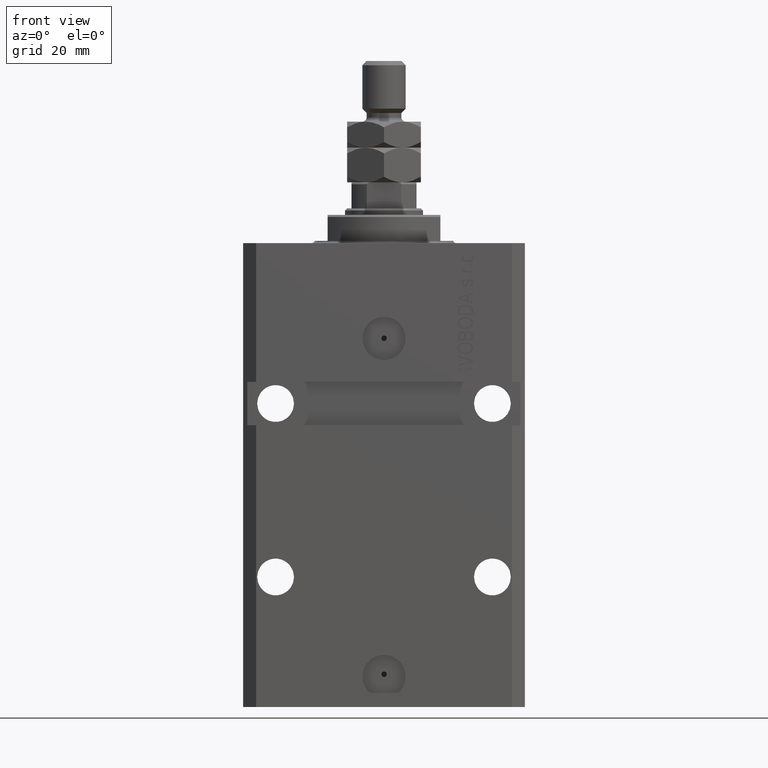
[diagram: clean part render]
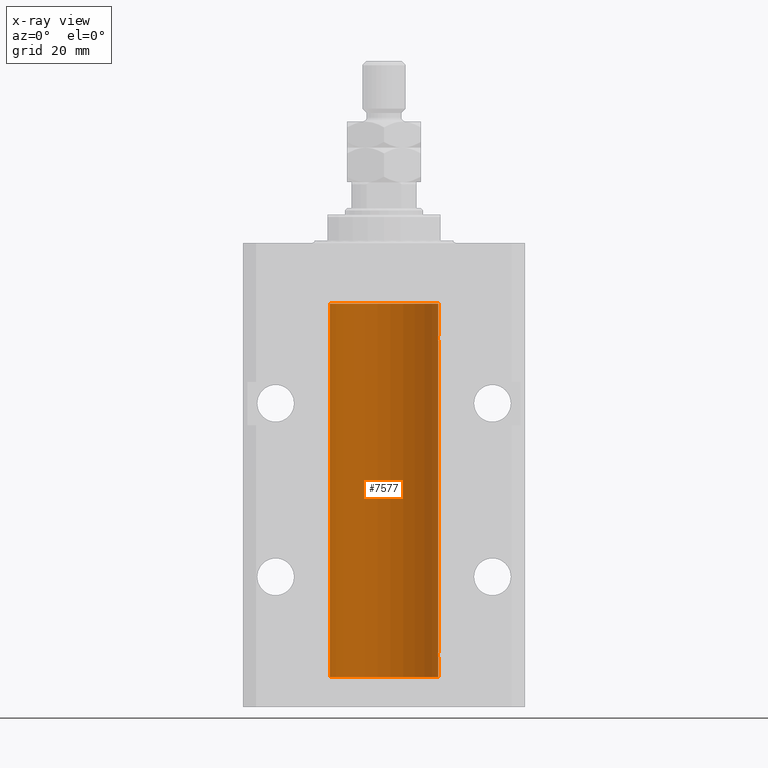
[diagram: x-ray — body ghosted, one internal face saturated and labeled with its STEP entity id]
A machine part, front view, then the same camera in x-ray: the body is ghosted and one INTERNAL B-rep face — a face not visible from any outside direction — is saturated and labeled: STEP entity #7577.
In plain terms, the highlighted cylindrical surface (partial cylindrical patch) has radius 12.5 mm, axis along (0, 0, 1).
Its self-contained STEP definition (entity closure, byte-faithful):
#271 = VERTEX_POINT ( 'NONE', #3368 ) ;
#592 = CARTESIAN_POINT ( 'NONE',  ( -12.48436813453758454, 0.6249418250771192618, -21.83668996798922635 ) ) ;
#647 = DIRECTION ( 'NONE',  ( -0.000000000000000000, -0.000000000000000000, 1.000000000000000000 ) ) ;
#1514 = CARTESIAN_POINT ( 'NONE',  ( 12.50000000000017941, 3.868073689162038701E-13, -94.37499999999640465 ) ) ;
#1816 = CARTESIAN_POINT ( 'NONE',  ( 12.50000000000000000, -1.470318446642941360E-15, -22.62500000000000000 ) ) ;
#1975 = DIRECTION ( 'NONE',  ( -0.000000000000000000, -0.000000000000000000, 1.000000000000000000 ) ) ;
#2133 = CARTESIAN_POINT ( 'NONE',  ( -12.48810268015257741, 0.5573155909661239304, -94.67347410093871929 ) ) ;
#2294 = CARTESIAN_POINT ( 'NONE',  ( 12.48810305280568222, 0.5461368461738485003, -94.68525466142676805 ) ) ;
#2371 = CARTESIAN_POINT ( 'NONE',  ( -12.49011732893843529, 0.5003763274120199833, -95.38348111289285214 ) ) ;
#2544 = DIRECTION ( 'NONE',  ( -0.000000000000000000, -0.000000000000000000, 1.000000000000000000 ) ) ;
#2610 = VERTEX_POINT ( 'NONE', #20080 ) ;
#2674 = VERTEX_POINT ( 'NONE', #16293 ) ;
#2788 = EDGE_LOOP ( 'NONE', ( #4615, #10529, #3699, #41931, #38320, #23142, #27535, #14792, #37107, #33343, #11453, #3773, #32498, #27604 ) ) ;
#3058 = CARTESIAN_POINT ( 'NONE',  ( 0.000000000000000000, 0.000000000000000000, -100.0999999999999943 ) ) ;
#3290 = DIRECTION ( 'NONE',  ( 0.000000000000000000, 0.000000000000000000, 1.000000000000000000 ) ) ;
#3368 = CARTESIAN_POINT ( 'NONE',  ( 12.50000000000000000, -1.836039810331332019E-15, -95.62500000000000000 ) ) ;
#3482 = CARTESIAN_POINT ( 'NONE',  ( -12.49422197749724006, 0.3843754434364375916, -21.50047099568095277 ) ) ;
#3699 = ORIENTED_EDGE ( 'NONE', *, *, #43548, .T. ) ;
#3773 = ORIENTED_EDGE ( 'NONE', *, *, #10243, .T. ) ;
#4167 = CARTESIAN_POINT ( 'NONE',  ( -12.49011732893843529, 0.5003763274120274218, -22.38348111289287701 ) ) ;
#4537 = EDGE_CURVE ( 'NONE', #19787, #41481, #35376, .T. ) ;
#4615 = ORIENTED_EDGE ( 'NONE', *, *, #4537, .F. ) ;
#4632 = VECTOR ( 'NONE', #647, 1000.000000000000000 ) ;
#5467 = CARTESIAN_POINT ( 'NONE',  ( -12.49915784441387068, 0.1636601911727894876, -94.39126818989429069 ) ) ;
#5607 = CARTESIAN_POINT ( 'NONE',  ( 12.49999999999999822, 0.08262306818362555316, -22.62499999999997513 ) ) ;
#5837 = CARTESIAN_POINT ( 'NONE',  ( 12.50000000000000000, -1.470318446642941360E-15, -22.62500000000000000 ) ) ;
#5923 = EDGE_CURVE ( 'NONE', #8409, #32985, #29791, .T. ) ;
#5932 = CARTESIAN_POINT ( 'NONE',  ( -12.49631005746706514, 0.3253680783018457756, -95.55856740465388555 ) ) ;
#6081 = LINE ( 'NONE', #6780, #23449 ) ;
#6087 = EDGE_CURVE ( 'NONE', #26111, #21292, #6081, .T. ) ;
#6369 = DIRECTION ( 'NONE',  ( 1.000000000000000000, 0.000000000000000000, 0.000000000000000000 ) ) ;
#6497 = CARTESIAN_POINT ( 'NONE',  ( -12.50000000000017941, 3.883381774819353300E-13, -95.62500000000359535 ) ) ;
#6678 = CARTESIAN_POINT ( 'NONE',  ( 12.49625698805481022, 0.3151108292486944906, -95.54593695688171806 ) ) ;
#6725 = CARTESIAN_POINT ( 'NONE',  ( 0.000000000000000000, 0.000000000000000000, -13.99999999999999822 ) ) ;
#6733 = AXIS2_PLACEMENT_3D ( 'NONE', #6725, #14812, #7668 ) ;
#6780 = CARTESIAN_POINT ( 'NONE',  ( 12.50000000000000000, 0.000000000000000000, -100.0999999999999943 ) ) ;
#6818 = B_SPLINE_CURVE_WITH_KNOTS ( 'NONE', 3,
 ( #24010, #35203, #5467, #28055, #34730, #2133, #9978, #31632, #30926, #45673, #2371, #5932, #9282, #16896 ),
 .UNSPECIFIED., .F., .F.,
 ( 4, 2, 2, 2, 2, 2, 4 ),
 ( 3.486178718436696769E-18, 0.0002442924852390829216, 0.0004885849704781623738, 0.0009771699409563507684, 0.001221462426195465403, 0.001465754911434580254, 0.001954339881912780900 ),
 .UNSPECIFIED. ) ;
#7497 = EDGE_CURVE ( 'NONE', #32985, #26111, #43937, .T. ) ;
#7577 = ADVANCED_FACE ( 'NONE', ( #40433 ), #25243, .F. ) ;
#7668 = DIRECTION ( 'NONE',  ( 1.000000000000000000, 0.000000000000000000, 0.000000000000000000 ) ) ;
#7709 = CARTESIAN_POINT ( 'NONE',  ( -12.50000000000017941, 3.883381646606358354E-13, -22.62500000000358824 ) ) ;
#7795 = CARTESIAN_POINT ( 'NONE',  ( -12.50000000000000000, 1.530808498934191521E-15, -100.0999999999999943 ) ) ;
#7852 = DIRECTION ( 'NONE',  ( 1.000000000000000000, 0.000000000000000000, 0.000000000000000000 ) ) ;
#8409 = VERTEX_POINT ( 'NONE', #1816 ) ;
#9282 = CARTESIAN_POINT ( 'NONE',  ( -12.49999999999999112, 0.1631761135151224562, -95.62499999999980105 ) ) ;
#9782 = CARTESIAN_POINT ( 'NONE',  ( 12.48520578595314845, 0.6087855079133684955, -21.83656717509346024 ) ) ;
#9978 = CARTESIAN_POINT ( 'NONE',  ( -12.48436813453758631, 0.6249418250771134886, -94.83668996798924411 ) ) ;
#10123 = DIRECTION ( 'NONE',  ( -0.000000000000000000, -0.000000000000000000, 1.000000000000000000 ) ) ;
#10243 = EDGE_CURVE ( 'NONE', #2610, #27803, #15278, .T. ) ;
#10529 = ORIENTED_EDGE ( 'NONE', *, *, #21313, .F. ) ;
#11038 = EDGE_CURVE ( 'NONE', #23044, #41481, #6818, .T. ) ;
#11304 = CARTESIAN_POINT ( 'NONE',  ( -12.48436376893640443, 0.6250290278979917513, -22.08132082824473486 ) ) ;
#11453 = ORIENTED_EDGE ( 'NONE', *, *, #15765, .F. ) ;
#11656 = AXIS2_PLACEMENT_3D ( 'NONE', #3058, #3290, #6369 ) ;
#12050 = CARTESIAN_POINT ( 'NONE',  ( 12.48436522214885969, 0.6250000000001448841, -22.16312747540307271 ) ) ;
#12927 = EDGE_CURVE ( 'NONE', #23044, #27803, #24554, .T. ) ;
#12948 = VECTOR ( 'NONE', #2544, 1000.000000000000000 ) ;
#13348 = CARTESIAN_POINT ( 'NONE',  ( 12.49631206032075958, 0.3252904079142808214, -21.44139700214925526 ) ) ;
#13583 = CARTESIAN_POINT ( 'NONE',  ( 12.49012055744648997, 0.5002956126655976332, -21.61641710202404454 ) ) ;
#14061 = CARTESIAN_POINT ( 'NONE',  ( 12.49421963472024721, 0.3844519291903572555, -95.49947303647047647 ) ) ;
#14211 = VERTEX_POINT ( 'NONE', #1514 ) ;
#14792 = ORIENTED_EDGE ( 'NONE', *, *, #7497, .T. ) ;
#14812 = DIRECTION ( 'NONE',  ( 0.000000000000000000, 0.000000000000000000, 1.000000000000000000 ) ) ;
#15119 = CARTESIAN_POINT ( 'NONE',  ( -12.48810268015257563, 0.5573155909661349217, -21.67347410093867666 ) ) ;
#15268 = CARTESIAN_POINT ( 'NONE',  ( -12.50000000000000000, 1.530808498934191521E-15, -100.0999999999999943 ) ) ;
#15278 = B_SPLINE_CURVE_WITH_KNOTS ( 'NONE', 3,
 ( #36999, #26288, #22711, #15359, #3482, #15119, #592, #11304, #21789, #18002, #4167, #36308, #29631, #40553 ),
 .UNSPECIFIED., .F., .F.,
 ( 4, 2, 2, 2, 2, 2, 4 ),
 ( 2.030551168097110502E-20, 0.0002442924852390969078, 0.0004885849704781938157, 0.0009771699409563880650, 0.001221462426195485135, 0.001465754911434582423, 0.001954339881912776130 ),
 .UNSPECIFIED. ) ;
#15359 = CARTESIAN_POINT ( 'NONE',  ( -12.49625855304193678, 0.3150454781038042329, -21.45402800297484802 ) ) ;
#15765 = EDGE_CURVE ( 'NONE', #2610, #22379, #33250, .T. ) ;
#16237 = CARTESIAN_POINT ( 'NONE',  ( 12.49999999999999822, 0.08262306818362624705, -95.62499999999998579 ) ) ;
#16293 = CARTESIAN_POINT ( 'NONE',  ( 12.50000000000000000, 0.000000000000000000, -100.0999999999999943 ) ) ;
#16540 = VECTOR ( 'NONE', #37268, 1000.000000000000000 ) ;
#16819 = CARTESIAN_POINT ( 'NONE',  ( 12.49999999999999822, 0.1631389616600901760, -94.37500000000024158 ) ) ;
#16896 = CARTESIAN_POINT ( 'NONE',  ( -12.50000000000017941, 3.883381774819353300E-13, -95.62500000000359535 ) ) ;
#16972 = CIRCLE ( 'NONE', #11656, 12.50000000000000000 ) ;
#17574 = CARTESIAN_POINT ( 'NONE',  ( 12.50000000000000000, 0.000000000000000000, -13.99999999999999822 ) ) ;
#17802 = EDGE_CURVE ( 'NONE', #271, #20166, #32998, .T. ) ;
#18002 = CARTESIAN_POINT ( 'NONE',  ( -12.48809959379011403, 0.5462151254764975317, -22.31461370481611795 ) ) ;
#18182 = CARTESIAN_POINT ( 'NONE',  ( -12.50000000000000000, -1.522152011595579853E-14, -94.37500000000000000 ) ) ;
#19186 = CARTESIAN_POINT ( 'NONE',  ( 12.50000000000000000, 0.000000000000000000, -100.0999999999999943 ) ) ;
#19425 = CARTESIAN_POINT ( 'NONE',  ( 12.49625698805480667, 0.3151108292486967666, -22.54593695688170385 ) ) ;
#19787 = VERTEX_POINT ( 'NONE', #15268 ) ;
#20080 = CARTESIAN_POINT ( 'NONE',  ( -12.50000000000000000, -2.089494013101375120E-17, -21.37499999999999645 ) ) ;
#20166 = VERTEX_POINT ( 'NONE', #43536 ) ;
#20728 = CARTESIAN_POINT ( 'NONE',  ( 12.48436522214885969, 0.6250000000001505462, -95.16312747540308692 ) ) ;
#20775 = CARTESIAN_POINT ( 'NONE',  ( 12.50000000000017941, 3.868073565084946818E-13, -21.37499999999641176 ) ) ;
#21292 = VERTEX_POINT ( 'NONE', #17574 ) ;
#21313 = EDGE_CURVE ( 'NONE', #2674, #19787, #16972, .T. ) ;
#21662 = CARTESIAN_POINT ( 'NONE',  ( 0.000000000000000000, 0.000000000000000000, -100.0999999999999943 ) ) ;
#21789 = CARTESIAN_POINT ( 'NONE',  ( -12.48520330846397819, 0.6088355886774127201, -22.16325431852561323 ) ) ;
#22379 = VERTEX_POINT ( 'NONE', #29744 ) ;
#22711 = CARTESIAN_POINT ( 'NONE',  ( -12.49915784441386890, 0.1636601911727947889, -21.39126818989430490 ) ) ;
#23044 = VERTEX_POINT ( 'NONE', #18182 ) ;
#23142 = ORIENTED_EDGE ( 'NONE', *, *, #34139, .T. ) ;
#23449 = VECTOR ( 'NONE', #10123, 1000.000000000000000 ) ;
#24010 = CARTESIAN_POINT ( 'NONE',  ( -12.50000000000000000, -1.522152011595579853E-14, -94.37500000000000000 ) ) ;
#24279 = CARTESIAN_POINT ( 'NONE',  ( 12.48436522214888100, 0.6249999999996762590, -21.91847339462350774 ) ) ;
#24518 = CARTESIAN_POINT ( 'NONE',  ( 12.48436522214846711, 0.6250000000078848039, -94.99999999999923261 ) ) ;
#24554 = LINE ( 'NONE', #42403, #31919 ) ;
#25031 = AXIS2_PLACEMENT_3D ( 'NONE', #21662, #25699, #7852 ) ;
#25243 = CYLINDRICAL_SURFACE ( 'NONE', #25031, 12.50000000000000000 ) ;
#25698 = VECTOR ( 'NONE', #41504, 1000.000000000000000 ) ;
#25699 = DIRECTION ( 'NONE',  ( -0.000000000000000000, -0.000000000000000000, 1.000000000000000000 ) ) ;
#26111 = VERTEX_POINT ( 'NONE', #20775 ) ;
#26288 = CARTESIAN_POINT ( 'NONE',  ( -12.50000000000000000, 0.08260426088729219685, -21.37500000000000000 ) ) ;
#27506 = CARTESIAN_POINT ( 'NONE',  ( 12.49421963472024366, 0.3844519291903583103, -22.49947303647044805 ) ) ;
#27516 = CARTESIAN_POINT ( 'NONE',  ( 12.49012055744648997, 0.5002956126656082914, -94.61641710202405875 ) ) ;
#27535 = ORIENTED_EDGE ( 'NONE', *, *, #5923, .T. ) ;
#27604 = ORIENTED_EDGE ( 'NONE', *, *, #11038, .T. ) ;
#27803 = VERTEX_POINT ( 'NONE', #7709 ) ;
#27860 = CARTESIAN_POINT ( 'NONE',  ( 12.49999999999999112, 0.1631389616600879555, -21.37500000000019185 ) ) ;
#28055 = CARTESIAN_POINT ( 'NONE',  ( -12.49625855304194033, 0.3150454781037993479, -94.45402800297488000 ) ) ;
#29631 = CARTESIAN_POINT ( 'NONE',  ( -12.49999999999999289, 0.1631761135151241215, -22.62499999999984013 ) ) ;
#29744 = CARTESIAN_POINT ( 'NONE',  ( -12.50000000000000000, 1.530808498934191521E-15, -13.99999999999999822 ) ) ;
#29791 = B_SPLINE_CURVE_WITH_KNOTS ( 'NONE', 3,
 ( #5837, #5607, #44641, #19425, #27506, #38440, #12050, #45341 ),
 .UNSPECIFIED., .F., .F.,
 ( 4, 2, 2, 4 ),
 ( 2.576359803311334014E-18, 0.0002443481056285645150, 0.0004886962112571264279, 0.0009773924225142506875 ),
 .UNSPECIFIED. ) ;
#30926 = CARTESIAN_POINT ( 'NONE',  ( -12.48520330846397997, 0.6088355886774070580, -95.16325431852561678 ) ) ;
#31087 = CARTESIAN_POINT ( 'NONE',  ( 12.48436522214888100, 0.6249999999996834754, -94.91847339462351840 ) ) ;
#31632 = CARTESIAN_POINT ( 'NONE',  ( -12.48436376893640620, 0.6250290278979871994, -95.08132082824478459 ) ) ;
#31919 = VECTOR ( 'NONE', #1975, 1000.000000000000000 ) ;
#32498 = ORIENTED_EDGE ( 'NONE', *, *, #12927, .F. ) ;
#32985 = VERTEX_POINT ( 'NONE', #38292 ) ;
#32998 = B_SPLINE_CURVE_WITH_KNOTS ( 'NONE', 3,
 ( #34306, #16237, #41653, #6678, #14061, #35478, #20728, #24518 ),
 .UNSPECIFIED., .F., .F.,
 ( 4, 2, 2, 4 ),
 ( 1.784246692340212412E-18, 0.0002443481056285665750, 0.0004886962112571313068, 0.0009773924225142606621 ),
 .UNSPECIFIED. ) ;
#33250 = LINE ( 'NONE', #7795, #4632 ) ;
#33343 = ORIENTED_EDGE ( 'NONE', *, *, #44941, .T. ) ;
#34139 = EDGE_CURVE ( 'NONE', #14211, #8409, #40804, .T. ) ;
#34306 = CARTESIAN_POINT ( 'NONE',  ( 12.50000000000000000, -1.836039810331332019E-15, -95.62500000000000000 ) ) ;
#34419 = CARTESIAN_POINT ( 'NONE',  ( 12.49631206032076136, 0.3252904079142934779, -94.44139700214928723 ) ) ;
#34730 = CARTESIAN_POINT ( 'NONE',  ( -12.49422197749723829, 0.3843754434364257122, -94.50047099568094211 ) ) ;
#35203 = CARTESIAN_POINT ( 'NONE',  ( -12.50000000000000000, 0.08260426088727994276, -94.37499999999998579 ) ) ;
#35376 = LINE ( 'NONE', #46077, #12948 ) ;
#35478 = CARTESIAN_POINT ( 'NONE',  ( 12.48809900631782099, 0.5573988467445673001, -95.32640147935475738 ) ) ;
#36308 = CARTESIAN_POINT ( 'NONE',  ( -12.49631005746706336, 0.3253680783018528255, -22.55856740465392463 ) ) ;
#36556 = CARTESIAN_POINT ( 'NONE',  ( 12.50000000000000000, 0.000000000000000000, -100.0999999999999943 ) ) ;
#36999 = CARTESIAN_POINT ( 'NONE',  ( -12.50000000000000000, -2.089494013101375120E-17, -21.37499999999999645 ) ) ;
#37049 = B_SPLINE_CURVE_WITH_KNOTS ( 'NONE', 3,
 ( #42244, #31087, #45595, #2294, #27516, #34419, #16819, #38451 ),
 .UNSPECIFIED., .F., .F.,
 ( 4, 2, 2, 4 ),
 ( 0.0009773924225142606621, 0.001221629287363811033, 0.001465866152213361404, 0.001954339881912461711 ),
 .UNSPECIFIED. ) ;
#37107 = ORIENTED_EDGE ( 'NONE', *, *, #6087, .T. ) ;
#37268 = DIRECTION ( 'NONE',  ( -0.000000000000000000, -0.000000000000000000, 1.000000000000000000 ) ) ;
#38292 = CARTESIAN_POINT ( 'NONE',  ( 12.48436522214846889, 0.6250000000078781426, -21.99999999999923261 ) ) ;
#38301 = EDGE_CURVE ( 'NONE', #20166, #14211, #37049, .T. ) ;
#38320 = ORIENTED_EDGE ( 'NONE', *, *, #38301, .T. ) ;
#38440 = CARTESIAN_POINT ( 'NONE',  ( 12.48809900631782099, 0.5573988467445639694, -22.32640147935474317 ) ) ;
#38451 = CARTESIAN_POINT ( 'NONE',  ( 12.50000000000017941, 3.868073689162038701E-13, -94.37499999999640465 ) ) ;
#40433 = FACE_OUTER_BOUND ( 'NONE', #2788, .T. ) ;
#40553 = CARTESIAN_POINT ( 'NONE',  ( -12.50000000000017941, 3.883381646606358354E-13, -22.62500000000358824 ) ) ;
#40804 = LINE ( 'NONE', #36556, #25698 ) ;
#40817 = LINE ( 'NONE', #19186, #16540 ) ;
#41481 = VERTEX_POINT ( 'NONE', #6497 ) ;
#41504 = DIRECTION ( 'NONE',  ( -0.000000000000000000, -0.000000000000000000, 1.000000000000000000 ) ) ;
#41653 = CARTESIAN_POINT ( 'NONE',  ( 12.49915742890631876, 0.1636982395582385896, -95.60872397847028026 ) ) ;
#41931 = ORIENTED_EDGE ( 'NONE', *, *, #17802, .T. ) ;
#42244 = CARTESIAN_POINT ( 'NONE',  ( 12.48436522214846711, 0.6250000000078848039, -94.99999999999923261 ) ) ;
#42361 = CARTESIAN_POINT ( 'NONE',  ( 12.50000000000017941, 3.868073565084946818E-13, -21.37499999999641176 ) ) ;
#42403 = CARTESIAN_POINT ( 'NONE',  ( -12.50000000000000000, 1.530808498934191521E-15, -100.0999999999999943 ) ) ;
#43536 = CARTESIAN_POINT ( 'NONE',  ( 12.48436522214846711, 0.6250000000078848039, -94.99999999999923261 ) ) ;
#43548 = EDGE_CURVE ( 'NONE', #2674, #271, #40817, .T. ) ;
#43937 = B_SPLINE_CURVE_WITH_KNOTS ( 'NONE', 3,
 ( #46175, #24279, #9782, #45941, #13583, #13348, #27860, #42361 ),
 .UNSPECIFIED., .F., .F.,
 ( 4, 2, 2, 4 ),
 ( 0.0009773924225142506875, 0.001221629287363794770, 0.001465866152213338852, 0.001954339881912434389 ),
 .UNSPECIFIED. ) ;
#44641 = CARTESIAN_POINT ( 'NONE',  ( 12.49915742890631876, 0.1636982395582437522, -22.60872397847025539 ) ) ;
#44941 = EDGE_CURVE ( 'NONE', #21292, #22379, #46236, .T. ) ;
#45341 = CARTESIAN_POINT ( 'NONE',  ( 12.48436522214846889, 0.6250000000078781426, -21.99999999999923261 ) ) ;
#45595 = CARTESIAN_POINT ( 'NONE',  ( 12.48520578595314845, 0.6087855079133740466, -94.83656717509346379 ) ) ;
#45673 = CARTESIAN_POINT ( 'NONE',  ( -12.48809959379011403, 0.5462151254764922026, -95.31461370481613926 ) ) ;
#45941 = CARTESIAN_POINT ( 'NONE',  ( 12.48810305280568222, 0.5461368461738448365, -21.68525466142676805 ) ) ;
#46077 = CARTESIAN_POINT ( 'NONE',  ( -12.50000000000000000, 1.530808498934191521E-15, -100.0999999999999943 ) ) ;
#46175 = CARTESIAN_POINT ( 'NONE',  ( 12.48436522214846889, 0.6250000000078781426, -21.99999999999923261 ) ) ;
#46236 = CIRCLE ( 'NONE', #6733, 12.50000000000000000 ) ;